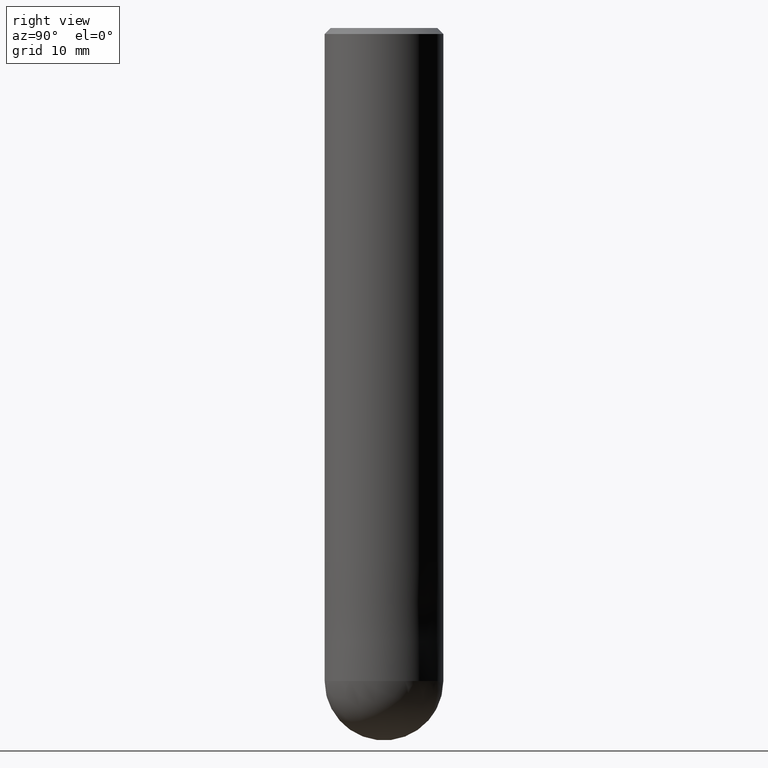
[diagram: clean part render]
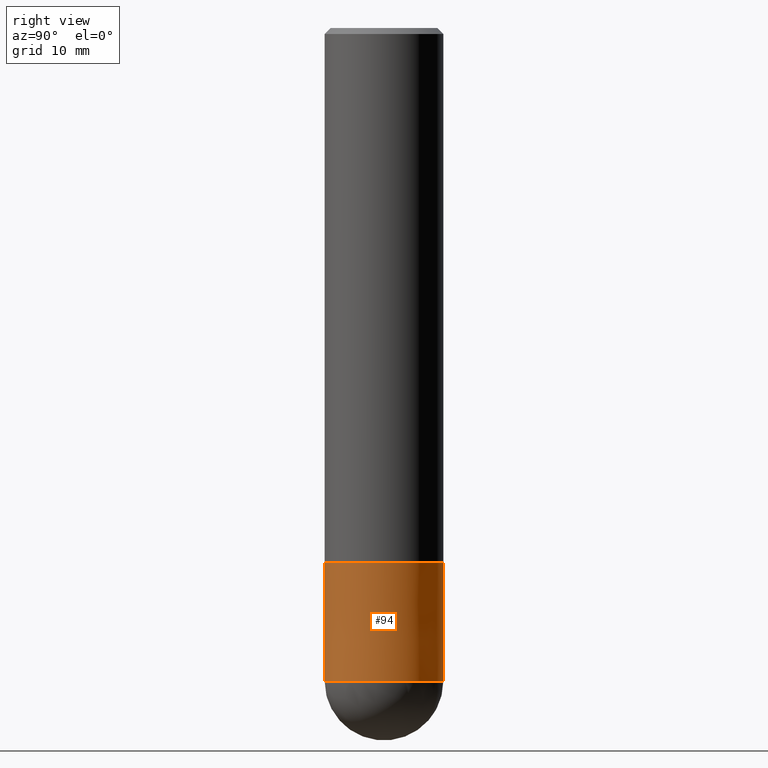
[diagram: same view with one face highlighted and labeled with its STEP entity id]
A machine part, right view. The second image highlights one B-rep face of the part: STEP entity #94.
In plain terms, the highlighted conical surface has half-angle 0.001 deg.
Its self-contained STEP definition (entity closure, byte-faithful):
#80=VERTEX_POINT('',#172);
#90=VERTEX_POINT('',#183);
#94=ADVANCED_FACE('',(#187),#188,.T.);
#98=EDGE_CURVE('',#134,#126,#193,.T.);
#102=EDGE_CURVE('',#134,#80,#197,.T.);
#114=EDGE_CURVE('',#126,#90,#211,.T.);
#118=EDGE_CURVE('',#90,#80,#215,.T.);
#126=VERTEX_POINT('',#225);
#134=VERTEX_POINT('',#236);
#172=CARTESIAN_POINT('',(6.1229093084765E-016,-4.9999,-45.0));
#183=CARTESIAN_POINT('',(6.12303176911188E-016,-5.0,-55.0));
#187=FACE_OUTER_BOUND('',#291,.T.);
#188=CONICAL_SURFACE('',#292,4.99995,9.99999999973218E-006);
#193=LINE('',#298,#299);
#197=CIRCLE('',#306,4.9999);
#211=CIRCLE('',#321,5.0);
#215=LINE('',#327,#328);
#225=CARTESIAN_POINT('',(0.0,5.0,-55.0));
#236=CARTESIAN_POINT('',(0.0,4.9999,-45.0));
#291=EDGE_LOOP('',(#388,#389,#390,#391));
#292=AXIS2_PLACEMENT_3D('',#392,#393,#394);
#298=CARTESIAN_POINT('',(-6.12297053879419E-016,4.99995,-50.0));
#299=VECTOR('',#401,1.0);
#306=AXIS2_PLACEMENT_3D('',#403,#404,#405);
#321=AXIS2_PLACEMENT_3D('',#426,#427,#428);
#327=CARTESIAN_POINT('',(6.12297053879419E-016,-4.99995,-50.0));
#328=VECTOR('',#432,1.0);
#388=ORIENTED_EDGE('',*,*,#98,.F.);
#389=ORIENTED_EDGE('',*,*,#102,.T.);
#390=ORIENTED_EDGE('',*,*,#118,.F.);
#391=ORIENTED_EDGE('',*,*,#114,.F.);
#392=CARTESIAN_POINT('',(0.0,0.0,-50.0));
#393=DIRECTION('',(0.0,-0.0,-1.0));
#394=DIRECTION('',(0.0,1.0,0.0));
#401=DIRECTION('',(-1.22460635376917E-021,9.99999999956551E-006,-0.99999999995));
#403=CARTESIAN_POINT('',(0.0,0.0,-45.0));
#404=DIRECTION('',(0.0,0.0,-1.0));
#405=DIRECTION('',(0.0,1.0,0.0));
#426=CARTESIAN_POINT('',(0.0,0.0,-55.0));
#427=DIRECTION('',(0.0,0.0,-1.0));
#428=DIRECTION('',(0.0,1.0,0.0));
#432=DIRECTION('',(-1.22460635376917E-021,9.99999999956551E-006,0.99999999995));